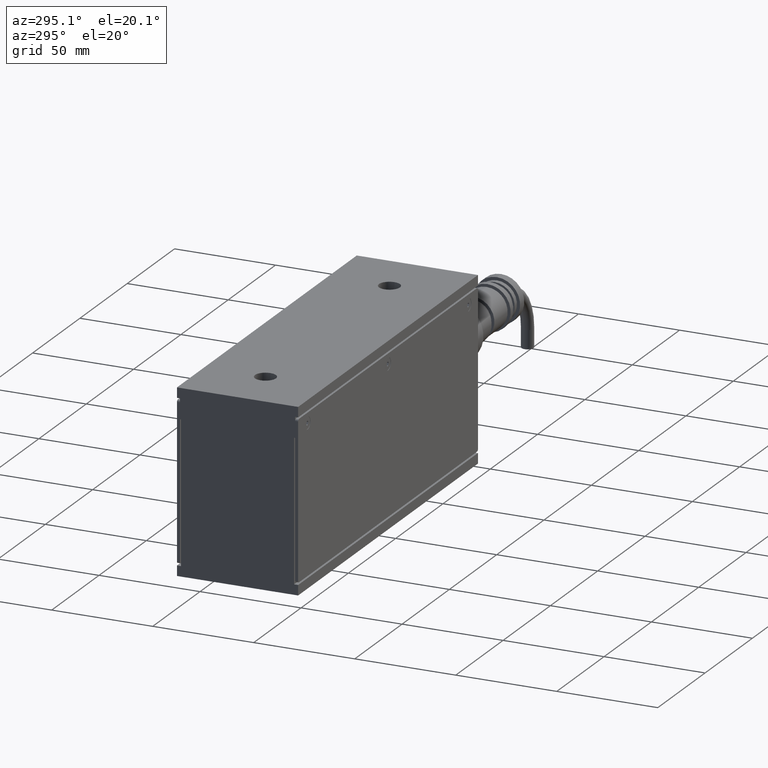
[diagram: clean part render]
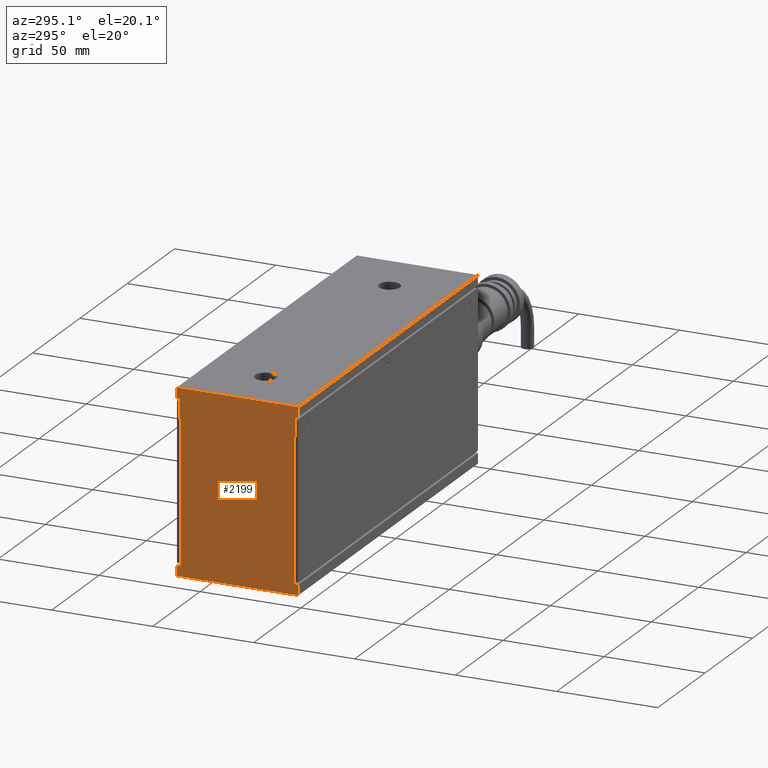
[diagram: same view with one face highlighted and labeled with its STEP entity id]
A machine part, auxiliary view. The second image highlights one B-rep face of the part: STEP entity #2199.
In plain terms, the highlighted planar face has unit normal (-1, 0, 0).
Its self-contained STEP definition (entity closure, byte-faithful):
#1511=CARTESIAN_POINT('',(-101.957093014422580,-125.089066365486590,74.500000000000000));
#1512=VERTEX_POINT('',#1511);
#1519=CARTESIAN_POINT('',(-101.957093014422580,-124.589066365486590,74.500000000000000));
#1520=VERTEX_POINT('',#1519);
#1521=CARTESIAN_POINT('',(-101.957093014422580,-124.589066365486590,74.500000000000000));
#1522=DIRECTION('',(0.0,-1.0,0.0));
#1523=VECTOR('',#1522,0.500000000000000);
#1524=LINE('',#1521,#1523);
#1525=EDGE_CURVE('',#1520,#1512,#1524,.T.);
#1550=CARTESIAN_POINT('',(-101.957093014422580,-124.589066365486600,4.500000000000007));
#1551=VERTEX_POINT('',#1550);
#1552=CARTESIAN_POINT('',(-101.957093014422580,-124.589066365486600,4.500000000000007));
#1553=DIRECTION('',(0.0,0.0,1.0));
#1554=VECTOR('',#1553,70.0);
#1555=LINE('',#1552,#1554);
#1556=EDGE_CURVE('',#1551,#1520,#1555,.T.);
#1581=CARTESIAN_POINT('',(-101.957093014422580,-126.589066365486590,4.500000000000007));
#1582=VERTEX_POINT('',#1581);
#1583=CARTESIAN_POINT('',(-101.957093014422580,-126.589066365486590,4.500000000000007));
#1584=DIRECTION('',(0.0,1.0,0.0));
#1585=VECTOR('',#1584,1.999999999999986);
#1586=LINE('',#1583,#1585);
#1587=EDGE_CURVE('',#1582,#1551,#1586,.T.);
#1613=CARTESIAN_POINT('',(-101.957093014422580,-126.589066365486590,84.499999999999986));
#1614=VERTEX_POINT('',#1613);
#1621=CARTESIAN_POINT('',(-101.957093014422580,-125.089066365486590,84.500000000000014));
#1622=VERTEX_POINT('',#1621);
#1623=CARTESIAN_POINT('',(-101.957093014422580,-125.089066365486590,84.500000000000014));
#1624=DIRECTION('',(0.0,-1.0,0.0));
#1625=VECTOR('',#1624,1.500000000000000);
#1626=LINE('',#1623,#1625);
#1627=EDGE_CURVE('',#1622,#1614,#1626,.T.);
#1650=CARTESIAN_POINT('',(-101.957093014422580,-125.089066365486590,74.500000000000000));
#1651=DIRECTION('',(0.0,0.0,1.0));
#1652=VECTOR('',#1651,10.000000000000014);
#1653=LINE('',#1650,#1652);
#1654=EDGE_CURVE('',#1512,#1622,#1653,.T.);
#1687=CARTESIAN_POINT('',(-101.957093014422580,-68.589066365486616,74.500000000000000));
#1688=VERTEX_POINT('',#1687);
#1695=CARTESIAN_POINT('',(-101.957093014422580,-68.089066365486616,74.500000000000000));
#1696=VERTEX_POINT('',#1695);
#1697=CARTESIAN_POINT('',(-101.957093014422580,-68.089066365486616,74.500000000000000));
#1698=DIRECTION('',(0.0,-1.0,0.0));
#1699=VECTOR('',#1698,0.500000000000000);
#1700=LINE('',#1697,#1699);
#1701=EDGE_CURVE('',#1696,#1688,#1700,.T.);
#1726=CARTESIAN_POINT('',(-101.957093014422580,-68.089066365486616,84.500000000000000));
#1727=VERTEX_POINT('',#1726);
#1728=CARTESIAN_POINT('',(-101.957093014422580,-68.089066365486616,84.500000000000000));
#1729=DIRECTION('',(0.0,0.0,-1.0));
#1730=VECTOR('',#1729,10.0);
#1731=LINE('',#1728,#1730);
#1732=EDGE_CURVE('',#1727,#1696,#1731,.T.);
#1769=CARTESIAN_POINT('',(-101.957093014422580,-66.589066365486616,84.500000000000000));
#1770=VERTEX_POINT('',#1769);
#1771=CARTESIAN_POINT('',(-101.957093014422580,-66.589066365486616,84.500000000000000));
#1772=DIRECTION('',(0.0,-1.0,0.0));
#1773=VECTOR('',#1772,1.500000000000000);
#1774=LINE('',#1771,#1773);
#1775=EDGE_CURVE('',#1770,#1727,#1774,.T.);
#1799=CARTESIAN_POINT('',(-101.957093014422580,-68.589066365486644,4.500000000000000));
#1800=VERTEX_POINT('',#1799);
#1807=CARTESIAN_POINT('',(-101.957093014422580,-68.589066365486616,74.500000000000000));
#1808=DIRECTION('',(0.0,0.0,-1.0));
#1809=VECTOR('',#1808,70.0);
#1810=LINE('',#1807,#1809);
#1811=EDGE_CURVE('',#1688,#1800,#1810,.T.);
#1830=CARTESIAN_POINT('',(-101.957093014422580,-66.589066365486616,4.500000000000000));
#1831=VERTEX_POINT('',#1830);
#1838=CARTESIAN_POINT('',(-101.957093014422580,-68.589066365486644,4.500000000000000));
#1839=DIRECTION('',(0.0,1.0,0.0));
#1840=VECTOR('',#1839,2.000000000000028);
#1841=LINE('',#1838,#1840);
#1842=EDGE_CURVE('',#1800,#1831,#1841,.T.);
#1854=CARTESIAN_POINT('',(-101.957093014422580,-126.589066365486590,-0.500000000000000));
#1855=VERTEX_POINT('',#1854);
#1856=CARTESIAN_POINT('',(-101.957093014422580,-126.589066365486590,-0.500000000000000));
#1857=DIRECTION('',(0.0,0.0,1.0));
#1858=VECTOR('',#1857,5.000000000000007);
#1859=LINE('',#1856,#1858);
#1860=EDGE_CURVE('',#1855,#1582,#1859,.T.);
#1960=CARTESIAN_POINT('',(-101.957093014422580,-66.589066365486616,89.500000000000000));
#1961=VERTEX_POINT('',#1960);
#1962=CARTESIAN_POINT('',(-101.957093014422580,-66.589066365486616,84.500000000000000));
#1963=DIRECTION('',(0.0,0.0,1.0));
#1964=VECTOR('',#1963,5.0);
#1965=LINE('',#1962,#1964);
#1966=EDGE_CURVE('',#1770,#1961,#1965,.T.);
#2125=CARTESIAN_POINT('',(-101.957093014422580,-66.589066365486616,-0.500000000000000));
#2126=VERTEX_POINT('',#2125);
#2133=CARTESIAN_POINT('',(-101.957093014422580,-66.589066365486616,-0.500000000000000));
#2134=DIRECTION('',(0.0,0.0,1.0));
#2135=VECTOR('',#2134,5.0);
#2136=LINE('',#2133,#2135);
#2137=EDGE_CURVE('',#2126,#1831,#2136,.T.);
#2149=CARTESIAN_POINT('',(-101.957093014422580,-126.589066365486590,89.500000000000000));
#2150=VERTEX_POINT('',#2149);
#2157=CARTESIAN_POINT('',(-101.957093014422580,-126.589066365486590,84.499999999999986));
#2158=DIRECTION('',(0.0,0.0,1.0));
#2159=VECTOR('',#2158,5.000000000000014);
#2160=LINE('',#2157,#2159);
#2161=EDGE_CURVE('',#1614,#2150,#2160,.T.);
#2166=CARTESIAN_POINT('',(-101.957093014422580,-126.589066365486590,-0.500000000000000));
#2167=DIRECTION('',(-1.0,0.0,0.0));
#2168=DIRECTION('',(0.0,0.0,1.0));
#2169=AXIS2_PLACEMENT_3D('',#2166,#2167,#2168);
#2170=PLANE('',#2169);
#2171=ORIENTED_EDGE('',*,*,#1627,.T.);
#2172=ORIENTED_EDGE('',*,*,#2161,.T.);
#2173=CARTESIAN_POINT('',(-101.957093014422580,-126.589066365486590,89.500000000000000));
#2174=DIRECTION('',(0.0,1.0,0.0));
#2175=VECTOR('',#2174,59.999999999999972);
#2176=LINE('',#2173,#2175);
#2177=EDGE_CURVE('',#2150,#1961,#2176,.T.);
#2178=ORIENTED_EDGE('',*,*,#2177,.T.);
#2179=ORIENTED_EDGE('',*,*,#1966,.F.);
#2180=ORIENTED_EDGE('',*,*,#1775,.T.);
#2181=ORIENTED_EDGE('',*,*,#1732,.T.);
#2182=ORIENTED_EDGE('',*,*,#1701,.T.);
#2183=ORIENTED_EDGE('',*,*,#1811,.T.);
#2184=ORIENTED_EDGE('',*,*,#1842,.T.);
#2185=ORIENTED_EDGE('',*,*,#2137,.F.);
#2186=CARTESIAN_POINT('',(-101.957093014422580,-126.589066365486590,-0.500000000000000));
#2187=DIRECTION('',(0.0,1.0,0.0));
#2188=VECTOR('',#2187,59.999999999999972);
#2189=LINE('',#2186,#2188);
#2190=EDGE_CURVE('',#1855,#2126,#2189,.T.);
#2191=ORIENTED_EDGE('',*,*,#2190,.F.);
#2192=ORIENTED_EDGE('',*,*,#1860,.T.);
#2193=ORIENTED_EDGE('',*,*,#1587,.T.);
#2194=ORIENTED_EDGE('',*,*,#1556,.T.);
#2195=ORIENTED_EDGE('',*,*,#1525,.T.);
#2196=ORIENTED_EDGE('',*,*,#1654,.T.);
#2197=EDGE_LOOP('',(#2171,#2172,#2178,#2179,#2180,#2181,#2182,#2183,#2184,#2185,#2191,#2192,#2193,#2194,#2195,#2196));
#2198=FACE_OUTER_BOUND('',#2197,.T.);
#2199=ADVANCED_FACE('',(#2198),#2170,.T.);